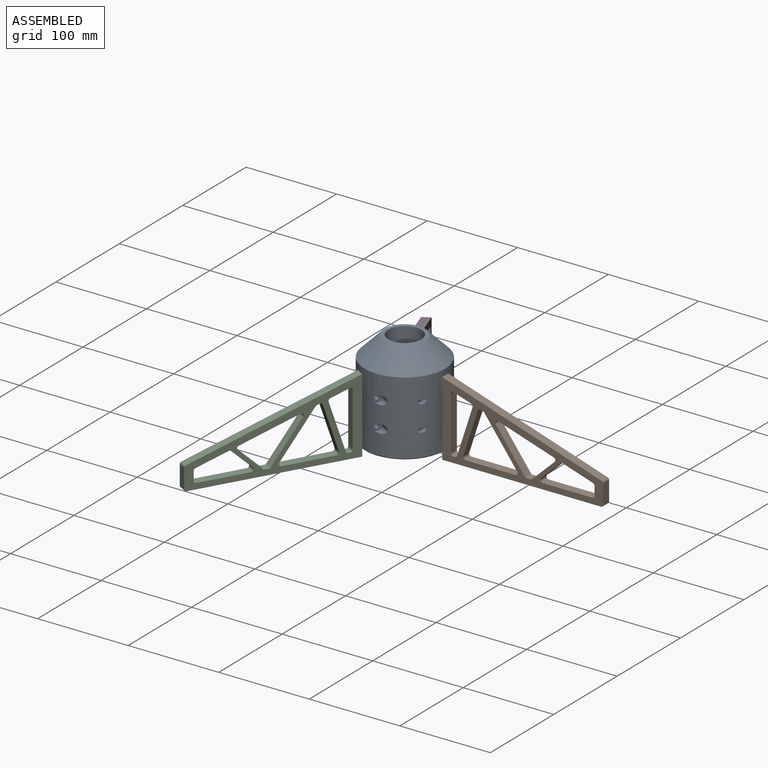
[diagram: assembled view]
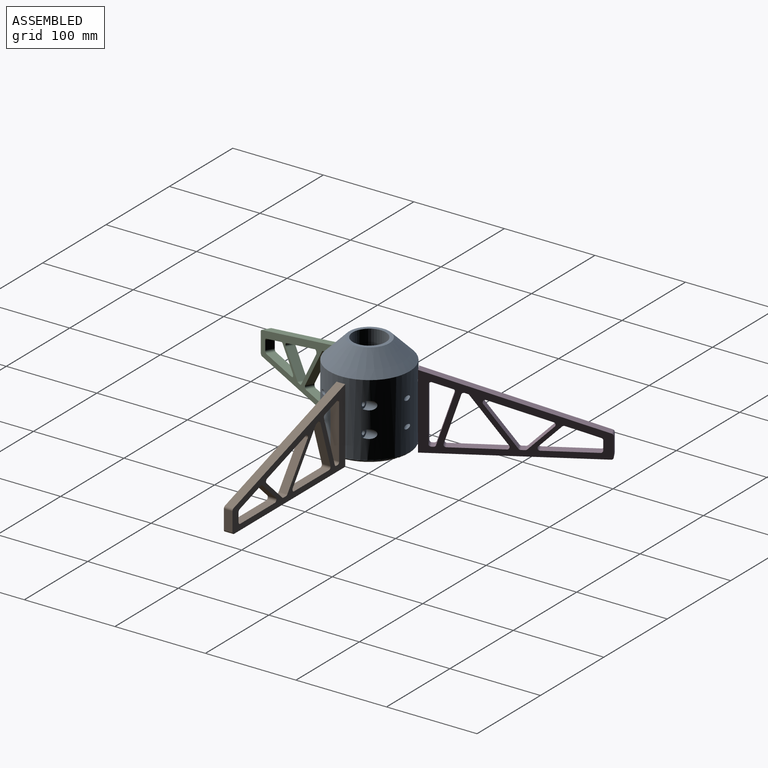
[diagram: assembled view, second angle]
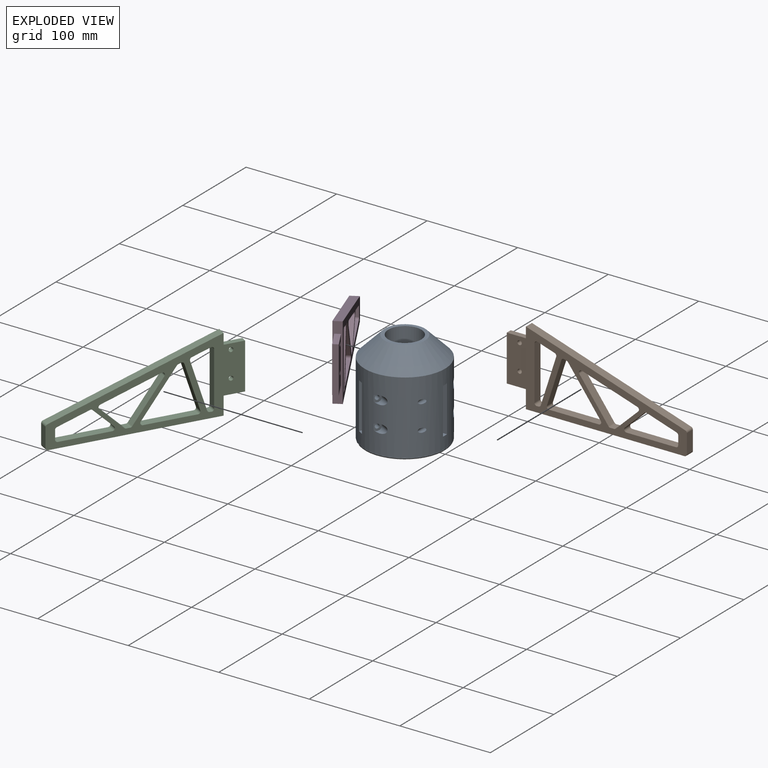
[diagram: exploded view]
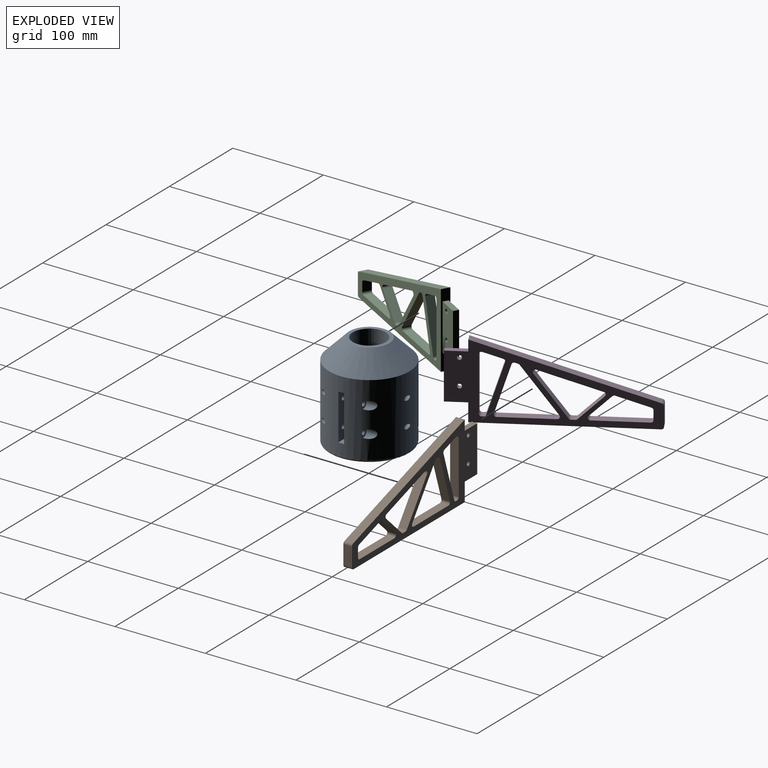
[diagram: exploded view, second angle]
ASSEMBLY  parts=4 mates=2
PART A: 43 faces, bbox 98.4x96.2x104.8 mm
  f0: cylinder r=4.76mm len=14.65mm, axis (0.5,0.87,0), area 177.3mm2, adj f1,f24
  f1: plane 9.53x7.28mm, normal (-0.5,-0.87,0), area 48.8mm2, adj f0,f6,f24
  f2: cylinder r=4.76mm len=14.65mm, axis (0.5,0.87,0), area 177.3mm2, adj f3,f24
  f3: plane 9.53x7.28mm, normal (-0.5,-0.87,0), area 48.8mm2, adj f2,f7,f24
  f4: cylinder r=2.38mm len=24.29mm, axis (-0.5,-0.87,0), area 329.2mm2, adj f9,f24
  f5: cylinder r=2.38mm len=24.29mm, axis (-0.5,-0.87,0), area 329.2mm2, adj f9,f24
  f6: cylinder r=2.38mm len=16.13mm, axis (-0.5,-0.87,0), area 237.5mm2, adj f1,f11
  f7: cylinder r=2.38mm len=16.13mm, axis (-0.5,-0.87,0), area 237.5mm2, adj f3,f11
  f8: plane 26x18.68mm, normal (0,0,-1), area 166.7mm2, adj f9,f11,f24,f27
  f9: plane 50.8x22.83mm, normal (-0.5,-0.87,0), area 1303.4mm2, adj f4,f5,f8,f10,f24,f27
  f10: plane 26x18.68mm, normal (0,0,1), area 166.7mm2, adj f9,f11,f24,f27
  f11: plane 50.8x22.83mm, normal (0.5,0.87,0), area 1303.4mm2, adj f6,f7,f8,f10,f24,f27
  f12: cylinder r=4.76mm len=14.65mm, axis (0.5,-0.87,0), area 177.1mm2, adj f13,f24
  f13: plane 9.53x7.28mm, normal (-0.5,0.87,0), area 48.8mm2, adj f12,f18,f24
  f14: cylinder r=4.76mm len=14.65mm, axis (0.5,-0.87,0), area 177.1mm2, adj f15,f24
  f15: plane 9.53x7.28mm, normal (-0.5,0.87,0), area 48.8mm2, adj f14,f19,f24
  f16: cylinder r=2.38mm len=24.29mm, axis (-0.5,0.87,0), area 329.2mm2, adj f21,f24
  f17: cylinder r=2.38mm len=24.29mm, axis (-0.5,0.87,0), area 329.2mm2, adj f21,f24
  f18: cylinder r=2.38mm len=16.13mm, axis (-0.5,0.87,0), area 237.5mm2, adj f13,f23
  f19: cylinder r=2.38mm len=16.13mm, axis (-0.5,0.87,0), area 237.5mm2, adj f15,f23
  f20: plane 26x18.68mm, normal (0,0,-1), area 166.7mm2, adj f21,f23,f24,f27
  f21: plane 50.8x22.83mm, normal (-0.5,0.87,0), area 1303.4mm2, adj f16,f17,f20,f22,f24,f27
  f22: plane 26x18.68mm, normal (0,0,1), area 166.7mm2, adj f21,f23,f24,f27
  f23: plane 50.8x22.83mm, normal (0.5,-0.87,0), area 1303.4mm2, adj f18,f19,f20,f22,f24,f27
  f24: cylinder r=44.45mm len=88.9mm, axis (0,0,-1), area 20482.1mm2, adj f0,f1,f2,f3,f4,f5,f8,f9
  f25: cylinder r=2.38mm len=15.88mm, axis (1,0,0), area 237.5mm2, adj f33,f39
  f26: cylinder r=2.38mm len=15.88mm, axis (1,0,0), area 237.5mm2, adj f33,f37
  f27: cylinder r=18.26mm len=101.6mm, axis (0,0,-1), area 10681.6mm2, adj f8,f9,f10,f11,f20,f21,f22,f23
  f28: plane 44.45x44.45mm, normal (0,0,1), area 504.7mm2, adj f27,f29
  f29: cone r=22.23mm half-angle=45deg, axis (0,0,-1), area 6583.7mm2, adj f24,f28
  f30: plane 26.47x6.35mm, normal (0,0,-1), area 166.7mm2, adj f24,f27,f31,f33
  f31: plane 50.8x26.36mm, normal (1,0,0), area 1303.4mm2, adj f24,f27,f30,f32,f34,f35
  f32: plane 26.47x6.35mm, normal (0,0,1), area 166.7mm2, adj f24,f27,f31,f33
  f33: plane 50.8x26.36mm, normal (-1,0,0), area 1303.4mm2, adj f24,f25,f26,f27,f30,f32
  f34: cylinder r=2.38mm len=25.3mm, axis (1,0,0), area 329.2mm2, adj f24,f31
  f35: cylinder r=2.38mm len=25.3mm, axis (1,0,0), area 329.2mm2, adj f24,f31
  f36: cylinder r=4.76mm len=12.06mm, axis (-1,0,0), area 177.1mm2, adj f24,f37
  f37: plane 9.53x8.41mm, normal (1,0,0), area 48.8mm2, adj f24,f26,f36
  f38: cylinder r=4.76mm len=12.06mm, axis (-1,0,0), area 177.1mm2, adj f24,f39
  f39: plane 9.53x8.41mm, normal (1,0,0), area 48.8mm2, adj f24,f25,f38
  f40: plane 36.51x36.51mm, normal (0,0,1), area 1047.1mm2, adj f27
  f41: plane 83.82x83.82mm, normal (0,0,-1), area 5518mm2, adj f42
  f42: torus R=41.91mm, axis (0,0,-1), area 1091.2mm2, adj f24,f41
PART B: 47 faces, bbox 200x9.5x82.6 mm
  f0: plane 176.04x56.58mm, normal (0.31,0,0.95), area 1760.3mm2, adj f19,f20,f38,f39
  f1: plane 175.26x9.53mm, normal (0,0,-1), area 1668.4mm2, adj f19,f20,f37,f39
  f2: plane 59.38x9.53mm, normal (1,0,0), area 565.6mm2, adj f19,f20,f33,f36
  f3: plane 19.07x9.53mm, normal (-0.31,0,-0.95), area 190.8mm2, adj f19,f20,f33,f34
  f4: plane 53.25x17.12mm, normal (-0.95,0,0.31), area 532.8mm2, adj f19,f20,f34,f35
  f5: plane 49.85x16.02mm, normal (0.95,0,-0.31), area 498.7mm2, adj f19,f20,f29,f32
  f6: plane 9.53x2.85mm, normal (-0.31,0,-0.95), area 28.5mm2, adj f19,f20,f29,f30
  f7: plane 48.93x36.12mm, normal (-0.8,0,-0.59), area 579.3mm2, adj f19,f20,f30,f31
  f8: plane 43.59x32.18mm, normal (0.8,0,0.59), area 516.1mm2, adj f19,f20,f25,f28
  f9: plane 61.23x19.68mm, normal (-0.31,0,-0.95), area 612.6mm2, adj f19,f20,f25,f26
  f10: plane 25.01x23.91mm, normal (-0.69,0,0.72), area 329.6mm2, adj f19,f20,f26,f27
  f11: plane 21.56x20.62mm, normal (0.69,0,-0.72), area 284.1mm2, adj f19,f20,f21,f24
  f12: plane 33.07x10.63mm, normal (-0.31,0,-0.95), area 330.9mm2, adj f19,f20,f21,f22
  f13: plane 9.99x9.53mm, normal (-1,0,0), area 95.1mm2, adj f19,f20,f22,f23
  f14: plane 9.53x1.96mm, normal (0,0,1), area 18.7mm2, adj f19,f20,f35,f36
  f15: plane 54.98x9.53mm, normal (0,0,1), area 523.7mm2, adj f19,f20,f31,f32
  f16: plane 9.53x4.05mm, normal (0,0,1), area 38.6mm2, adj f19,f20,f27,f28
  f17: plane 54.63x9.53mm, normal (0,0,1), area 520.3mm2, adj f19,f20,f23,f24
  f18: plane 21.01x9.53mm, normal (1,0,0), area 200.1mm2, adj f19,f20,f37,f38
  f19: plane 177.8x82.55mm, normal (0,-1,0), area 4166.3mm2, adj f0,f1,f2,f3,f4,f5,f6,f7
  f20: plane 177.8x82.55mm, normal (0,1,0), area 4166.3mm2, adj f0,f1,f2,f3,f4,f5,f6,f7
  f21: cylinder r=2.54mm len=9.53mm, axis (0,-1,0), area 26mm2, adj f11,f12,f19,f20
  f22: cylinder r=2.54mm len=9.53mm, axis (0,-1,0), area 30.5mm2, adj f12,f13,f19,f20
  f23: cylinder r=2.54mm len=9.53mm, axis (0,-1,0), area 38mm2, adj f13,f17,f19,f20
  f24: cylinder r=2.54mm len=9.53mm, axis (0,-1,0), area 57.5mm2, adj f11,f17,f19,f20
  f25: cylinder r=2.54mm len=9.53mm, axis (0,-1,0), area 60.9mm2, adj f8,f9,f19,f20
  f26: cylinder r=2.54mm len=9.53mm, axis (0,-1,0), area 50mm2, adj f9,f10,f19,f20
  f27: cylinder r=2.54mm len=9.53mm, axis (0,-1,0), area 18.5mm2, adj f10,f16,f19,f20
  f28: cylinder r=2.54mm len=9.53mm, axis (0,-1,0), area 22.6mm2, adj f8,f16,f19,f20
  f29: cylinder r=2.54mm len=9.53mm, axis (0,-1,0), area 38mm2, adj f5,f6,f19,f20
  f30: cylinder r=2.54mm len=9.53mm, axis (0,-1,0), area 15.1mm2, adj f6,f7,f19,f20
  f31: cylinder r=2.54mm len=9.53mm, axis (0,-1,0), area 53.4mm2, adj f7,f15,f19,f20
  f32: cylinder r=2.54mm len=9.53mm, axis (0,-1,0), area 45.5mm2, adj f5,f15,f19,f20
  f33: cylinder r=2.54mm len=9.53mm, axis (0,-1,0), area 45.5mm2, adj f2,f3,f19,f20
  f34: cylinder r=2.54mm len=9.53mm, axis (0,-1,0), area 38mm2, adj f3,f4,f19,f20
  f35: cylinder r=2.54mm len=9.53mm, axis (0,-1,0), area 30.5mm2, adj f4,f14,f19,f20
  f36: cylinder r=2.54mm len=9.53mm, axis (0,-1,0), area 38mm2, adj f2,f14,f19,f20
  f37: cylinder r=2.54mm len=9.53mm, axis (0,1,0), area 38mm2, adj f1,f18,f19,f20
  f38: cylinder r=2.54mm len=9.53mm, axis (0,1,0), area 30.5mm2, adj f0,f18,f19,f20
  f39: cylinder r=76.2mm len=82.55mm, axis (0,0,-1), area 476.7mm2, adj f0,f1,f19,f20,f40,f41,f45,f46
  f40: plane 22.37x6.1mm, normal (0,0,1), area 136.3mm2, adj f39,f42,f45,f46
  f41: plane 22.37x6.1mm, normal (0,0,-1), area 136.3mm2, adj f39,f42,f45,f46
  f42: plane 50.8x6.1mm, normal (-1,0,0), area 309.7mm2, adj f40,f41,f45,f46
  f43: cylinder r=2.38mm len=6.1mm, axis (0,1,0), area 91.2mm2, adj f45,f46
  f44: cylinder r=2.38mm len=6.1mm, axis (0,1,0), area 91.2mm2, adj f45,f46
  f45: plane 50.8x22.31mm, normal (0,-1,0), area 1097.9mm2, adj f39,f40,f41,f42,f43,f44
  f46: plane 50.8x22.31mm, normal (0,1,0), area 1097.9mm2, adj f39,f40,f41,f42,f43,f44
PART C: same geometry as B
PART D: same geometry as B
PLACE A rot(axis=(0,0,-1),30deg) t=(-30.35,79.73,12.62)mm
PLACE B t=(80.22,79.61,36.26)mm
PLACE C rot(axis=(0,0,-1),120deg) t=(-85.74,-15.96,36.26)mm
PLACE D rot(axis=(0,0,1),120deg) t=(-85.52,175.55,36.26)mm
MATE cylindrical A.f14 <-> B.f43  axis (0,-1,0) through (6.16,82.91,66.59)mm
MATE planar B.f45 <-> A.f21  axis (0,-1,0) through (3.13,76.56,47.39)mm
